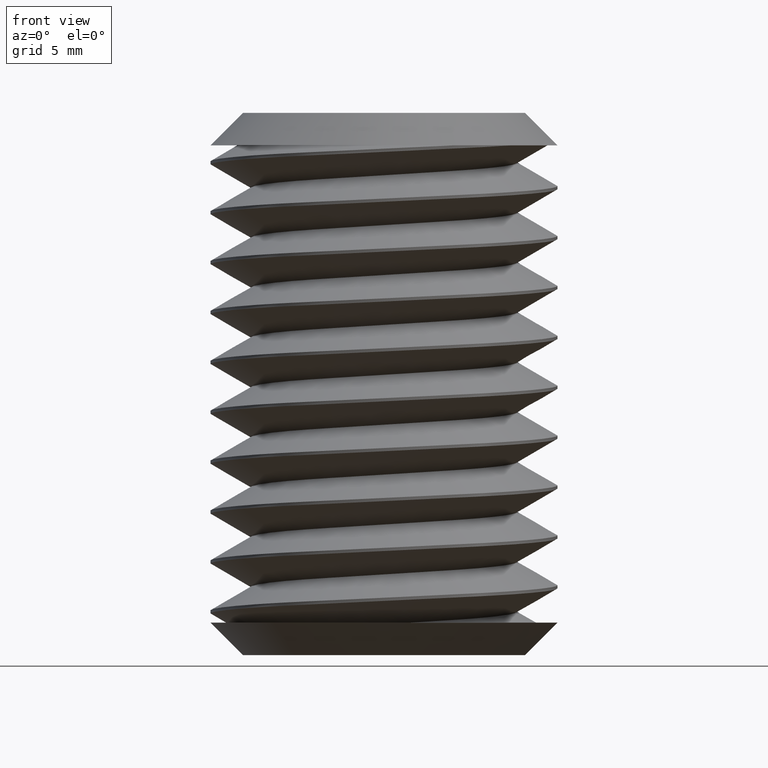
[diagram: clean part render]
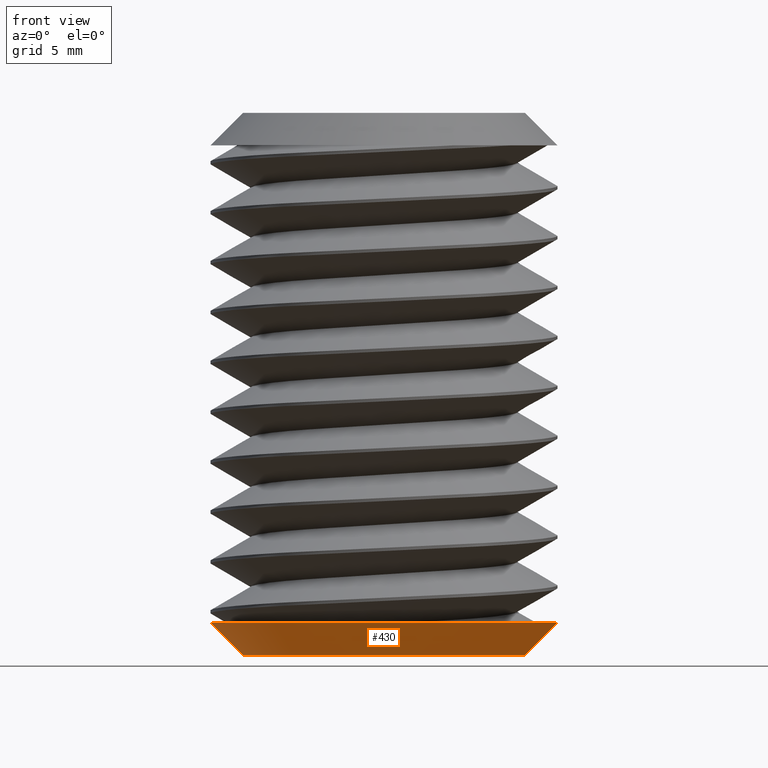
[diagram: same view with one face highlighted and labeled with its STEP entity id]
A machine part, front view. The second image highlights one B-rep face of the part: STEP entity #430.
In plain terms, the highlighted conical surface has half-angle 45 deg.
Its self-contained STEP definition (entity closure, byte-faithful):
#120 = AXIS2_PLACEMENT_3D ( 'NONE', #3296, #3297, #3298 ) ;
#137 = AXIS2_PLACEMENT_3D ( 'NONE', #2557, #2558, #2559 ) ;
#138 = AXIS2_PLACEMENT_3D ( 'NONE', #2560, #2561, #2562 ) ;
#430 = ADVANCED_FACE ( 'NONE', ( #1211 ), #1212, .T. ) ;
#466 = EDGE_CURVE ( 'NONE', #3429, #3430, #1235, .T. ) ;
#467 = EDGE_CURVE ( 'NONE', #3404, #3428, #1236, .T. ) ;
#1112 = CARTESIAN_POINT ( 'NONE',  ( -6.500000000000000900, 7.960204194457796500E-016, -25.00000000000000000 ) ) ;
#1113 = DIRECTION ( 'NONE',  ( -0.7071067811865471300, 8.659560562354927900E-017, 0.7071067811865479100 ) ) ;
#1211 = FACE_OUTER_BOUND ( 'NONE', #1404, .T. ) ;
#1212 = CONICAL_SURFACE ( 'NONE', #120, 6.500000000000000900, 0.7853981633974477200 ) ;
#1235 = CIRCLE ( 'NONE', #137, 7.999999999999923600 ) ;
#1236 = CIRCLE ( 'NONE', #138, 6.499999999999979600 ) ;
#1238 = LINE ( 'NONE', #1797, #1332 ) ;
#1257 = LINE ( 'NONE', #1112, #1342 ) ;
#1332 = VECTOR ( 'NONE', #1798, 1000.000000000000000 ) ;
#1342 = VECTOR ( 'NONE', #1113, 1000.000000000000000 ) ;
#1352 = EDGE_CURVE ( 'NONE', #3404, #3430, #1238, .T. ) ;
#1404 = EDGE_LOOP ( 'NONE', ( #1433, #1432, #1431, #1430 ) ) ;
#1430 = ORIENTED_EDGE ( 'NONE', *, *, #466, .F. ) ;
#1431 = ORIENTED_EDGE ( 'NONE', *, *, #1352, .T. ) ;
#1432 = ORIENTED_EDGE ( 'NONE', *, *, #467, .F. ) ;
#1433 = ORIENTED_EDGE ( 'NONE', *, *, #3379, .F. ) ;
#1797 = CARTESIAN_POINT ( 'NONE',  ( 6.500000000000000900, 0.0000000000000000000, -25.00000000000000000 ) ) ;
#1798 = DIRECTION ( 'NONE',  ( 0.7071067811865471300, 0.0000000000000000000, 0.7071067811865479100 ) ) ;
#2068 = CARTESIAN_POINT ( 'NONE',  ( 6.499999999999979600, 0.0000000000000000000, -25.00000000000002100 ) ) ;
#2092 = CARTESIAN_POINT ( 'NONE',  ( -6.499999999999979600, 8.878689294309256700E-016, -25.00000000000002100 ) ) ;
#2093 = CARTESIAN_POINT ( 'NONE',  ( -7.999999999999923600, 9.797174393178733000E-016, -23.50000000000007800 ) ) ;
#2094 = CARTESIAN_POINT ( 'NONE',  ( 7.999999999999923600, 0.0000000000000000000, -23.50000000000007800 ) ) ;
#2557 = CARTESIAN_POINT ( 'NONE',  ( 0.0000000000000000000, 0.0000000000000000000, -23.50000000000007800 ) ) ;
#2558 = DIRECTION ( 'NONE',  ( 0.0000000000000000000, 0.0000000000000000000, 1.000000000000000000 ) ) ;
#2559 = DIRECTION ( 'NONE',  ( 1.000000000000000000, 0.0000000000000000000, 0.0000000000000000000 ) ) ;
#2560 = CARTESIAN_POINT ( 'NONE',  ( 0.0000000000000000000, 0.0000000000000000000, -25.00000000000002100 ) ) ;
#2561 = DIRECTION ( 'NONE',  ( -0.0000000000000000000, -0.0000000000000000000, -1.000000000000000000 ) ) ;
#2562 = DIRECTION ( 'NONE',  ( 1.000000000000000000, 0.0000000000000000000, 0.0000000000000000000 ) ) ;
#3296 = CARTESIAN_POINT ( 'NONE',  ( 0.0000000000000000000, 0.0000000000000000000, -25.00000000000000000 ) ) ;
#3297 = DIRECTION ( 'NONE',  ( 0.0000000000000000000, 0.0000000000000000000, 1.000000000000000000 ) ) ;
#3298 = DIRECTION ( 'NONE',  ( 1.000000000000000000, 0.0000000000000000000, 0.0000000000000000000 ) ) ;
#3379 = EDGE_CURVE ( 'NONE', #3428, #3429, #1257, .T. ) ;
#3404 = VERTEX_POINT ( 'NONE', #2068 ) ;
#3428 = VERTEX_POINT ( 'NONE', #2092 ) ;
#3429 = VERTEX_POINT ( 'NONE', #2093 ) ;
#3430 = VERTEX_POINT ( 'NONE', #2094 ) ;